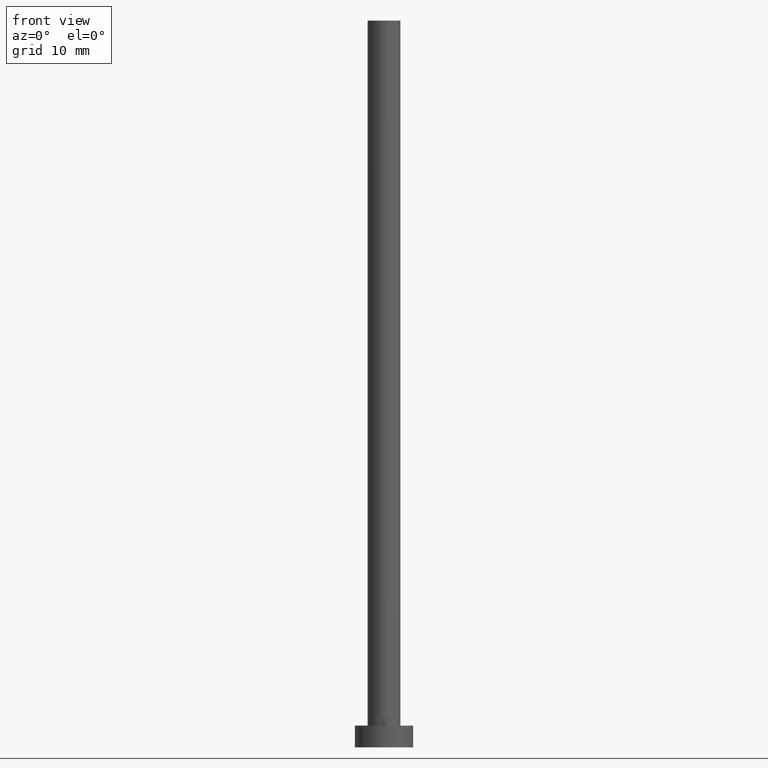
[diagram: clean part render]
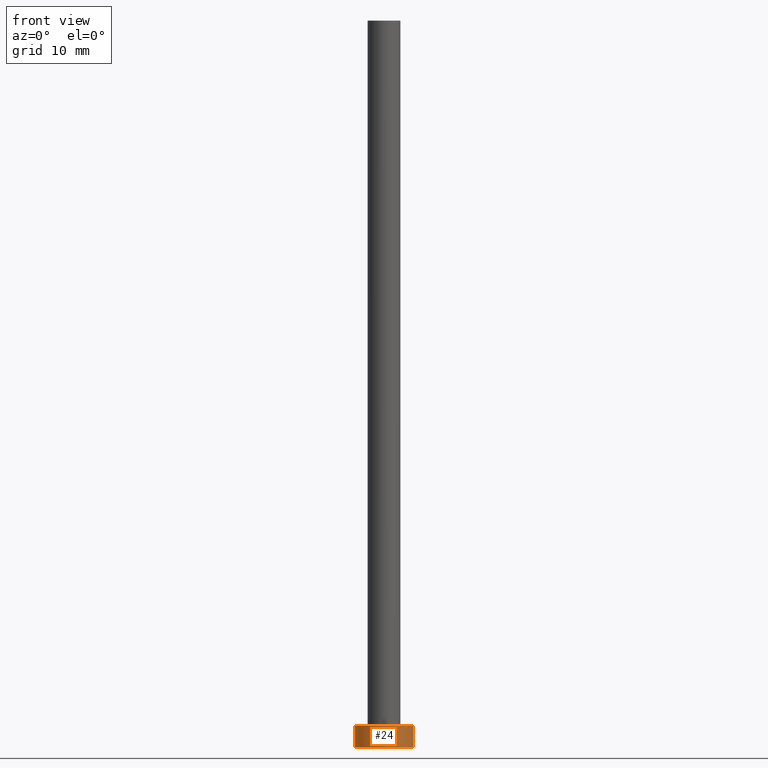
[diagram: same view with one face highlighted and labeled with its STEP entity id]
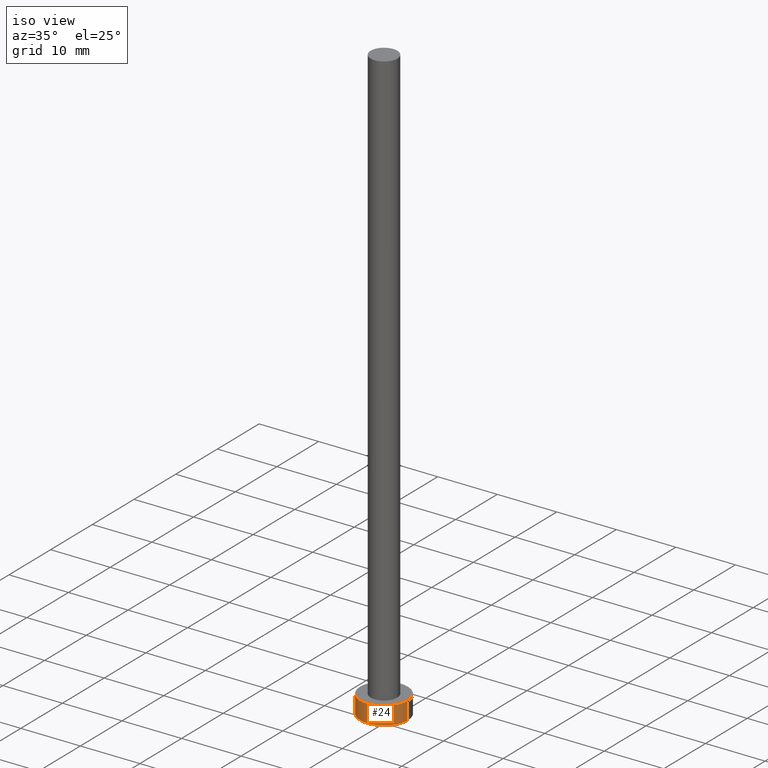
[diagram: same view with one face highlighted and labeled with its STEP entity id]
A machine part, front view. The second image highlights one B-rep face of the part: STEP entity #24.
A second angle (iso view) of the same face is appended — the face is thin or edge-on in the first view.
In plain terms, the highlighted cylindrical surface (edge-blend (fillet) strip) has radius 4 mm, axis along (-0, -0, -1).
Its self-contained STEP definition (entity closure, byte-faithful):
#5 = AXIS2_PLACEMENT_3D ( 'NONE', #227, #51, #7 ) ;
#7 = DIRECTION ( 'NONE',  ( 1.000000000000000000, 0.000000000000000000, 0.000000000000000000 ) ) ;
#13 = ORIENTED_EDGE ( 'NONE', *, *, #36, .F. ) ;
#15 = CARTESIAN_POINT ( 'NONE',  ( 4.000000000000000000, 4.898587196589412829E-16, 3.000000000000000000 ) ) ;
#16 = EDGE_CURVE ( 'NONE', #60, #247, #206, .T. ) ;
#22 = DIRECTION ( 'NONE',  ( 0.000000000000000000, 0.000000000000000000, 1.000000000000000000 ) ) ;
#24 = ADVANCED_FACE ( 'NONE', ( #47 ), #124, .T. ) ;
#34 = DIRECTION ( 'NONE',  ( -0.000000000000000000, -0.000000000000000000, -1.000000000000000000 ) ) ;
#36 = EDGE_CURVE ( 'NONE', #135, #171, #248, .T. ) ;
#39 = AXIS2_PLACEMENT_3D ( 'NONE', #240, #22, #84 ) ;
#41 = ORIENTED_EDGE ( 'NONE', *, *, #16, .T. ) ;
#47 = FACE_OUTER_BOUND ( 'NONE', #236, .T. ) ;
#50 = DIRECTION ( 'NONE',  ( -0.000000000000000000, -0.000000000000000000, -1.000000000000000000 ) ) ;
#51 = DIRECTION ( 'NONE',  ( 0.000000000000000000, 0.000000000000000000, 1.000000000000000000 ) ) ;
#60 = VERTEX_POINT ( 'NONE', #111 ) ;
#64 = CARTESIAN_POINT ( 'NONE',  ( 4.000000000000000000, 4.898587196589412829E-16, 3.000000000000000000 ) ) ;
#68 = CARTESIAN_POINT ( 'NONE',  ( 0.000000000000000000, 0.000000000000000000, 3.000000000000000000 ) ) ;
#71 = EDGE_CURVE ( 'NONE', #247, #171, #244, .T. ) ;
#84 = DIRECTION ( 'NONE',  ( 1.000000000000000000, 0.000000000000000000, 0.000000000000000000 ) ) ;
#107 = DIRECTION ( 'NONE',  ( -0.000000000000000000, -0.000000000000000000, -1.000000000000000000 ) ) ;
#111 = CARTESIAN_POINT ( 'NONE',  ( -4.000000000000000000, 0.000000000000000000, 3.000000000000000000 ) ) ;
#124 = CYLINDRICAL_SURFACE ( 'NONE', #194, 4.000000000000000000 ) ;
#135 = VERTEX_POINT ( 'NONE', #64 ) ;
#140 = CIRCLE ( 'NONE', #39, 4.000000000000000000 ) ;
#150 = EDGE_CURVE ( 'NONE', #60, #135, #140, .T. ) ;
#161 = VECTOR ( 'NONE', #50, 1000.000000000000000 ) ;
#171 = VERTEX_POINT ( 'NONE', #204 ) ;
#181 = DIRECTION ( 'NONE',  ( -1.000000000000000000, 0.000000000000000000, 0.000000000000000000 ) ) ;
#194 = AXIS2_PLACEMENT_3D ( 'NONE', #68, #107, #181 ) ;
#201 = ORIENTED_EDGE ( 'NONE', *, *, #71, .T. ) ;
#204 = CARTESIAN_POINT ( 'NONE',  ( 4.000000000000000000, 4.898587196589412829E-16, 0.000000000000000000 ) ) ;
#206 = LINE ( 'NONE', #222, #161 ) ;
#210 = VECTOR ( 'NONE', #34, 1000.000000000000000 ) ;
#222 = CARTESIAN_POINT ( 'NONE',  ( -4.000000000000000000, 0.000000000000000000, 3.000000000000000000 ) ) ;
#227 = CARTESIAN_POINT ( 'NONE',  ( 0.000000000000000000, 0.000000000000000000, 0.000000000000000000 ) ) ;
#231 = ORIENTED_EDGE ( 'NONE', *, *, #150, .F. ) ;
#236 = EDGE_LOOP ( 'NONE', ( #13, #231, #41, #201 ) ) ;
#238 = CARTESIAN_POINT ( 'NONE',  ( -4.000000000000000000, 0.000000000000000000, 0.000000000000000000 ) ) ;
#240 = CARTESIAN_POINT ( 'NONE',  ( 0.000000000000000000, 0.000000000000000000, 3.000000000000000000 ) ) ;
#244 = CIRCLE ( 'NONE', #5, 4.000000000000000000 ) ;
#247 = VERTEX_POINT ( 'NONE', #238 ) ;
#248 = LINE ( 'NONE', #15, #210 ) ;